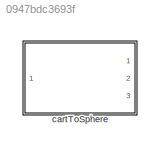
MODEL slx_0947bdc3693f
KIND library
CONFIG AbsTol = auto
CONFIG EnableMultiTasking = off
CONFIG FixedStep = auto
CONFIG MaxStep = auto
CONFIG MinStep = auto
CONFIG RelTol = 1e-3
CONFIG SampleTimeConstraint = Unconstrained
CONFIG SolverName = VariableStepAuto
CONFIG StartTime = 0.0
CONFIG StopTime = 10.0
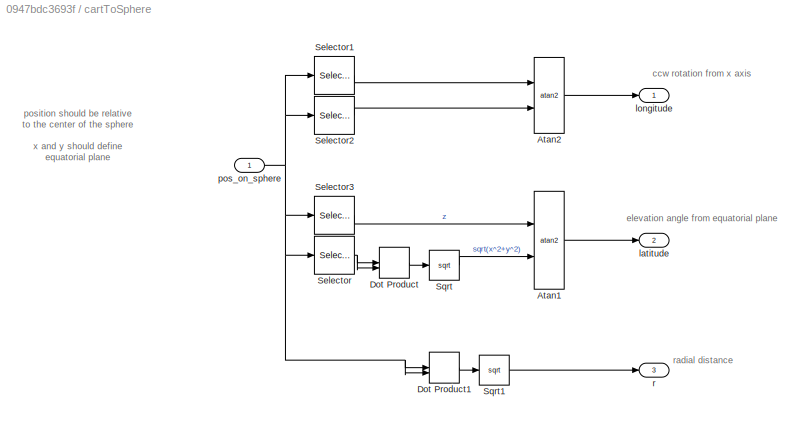
BLOCK [SubSystem] cartToSphere
  Ports = [1, 3]
  RequestExecContextInheritance = off
BLOCK [Trigonometry] cartToSphere/Atan1
  Operator = atan2
  Ports = [2, 1]
BLOCK [Trigonometry] cartToSphere/Atan2
  Operator = atan2
  Ports = [2, 1]
BLOCK [DotProduct] cartToSphere/Dot Product
  OutDataTypeStr = Inherit: Inherit via internal rule
BLOCK [DotProduct] cartToSphere/Dot Product1
  OutDataTypeStr = Inherit: Inherit via internal rule
BLOCK [Selector] cartToSphere/Selector
  IndexOptions = Index vector (dialog)
  Indices = [1 2]
  InputPortWidth = 3
  OutputSizes = 1
  Ports = [1, 1]
BLOCK [Selector] cartToSphere/Selector1
  IndexOptions = Index vector (dialog)
  Indices = 2
  InputPortWidth = 3
  OutputSizes = 1
  Ports = [1, 1]
BLOCK [Selector] cartToSphere/Selector2
  IndexOptions = Index vector (dialog)
  Indices = 1
  InputPortWidth = 3
  OutputSizes = 1
  Ports = [1, 1]
BLOCK [Selector] cartToSphere/Selector3
  IndexOptions = Index vector (dialog)
  Indices = 3
  InputPortWidth = 3
  OutputSizes = 1
  Ports = [1, 1]
BLOCK [Sqrt] cartToSphere/Sqrt
BLOCK [Sqrt] cartToSphere/Sqrt1
BLOCK [Outport] cartToSphere/latitude
  Port = 2
  VectorParamsAs1DForOutWhenUnconnected = off
BLOCK [Outport] cartToSphere/longitude
  VectorParamsAs1DForOutWhenUnconnected = off
BLOCK [Inport] cartToSphere/pos_on_sphere
BLOCK [Outport] cartToSphere/r
  Port = 3
  VectorParamsAs1DForOutWhenUnconnected = off
ANNOTATION cartToSphere: ccw rotation from x axis
ANNOTATION cartToSphere: elevation angle from equatorial plane
ANNOTATION cartToSphere: position should be relative to the center of the sphere x and y should define equatorial plane phi will be positive in positive z direction
ANNOTATION cartToSphere: radial distance
LINE cartToSphere/Atan1:1 -> cartToSphere/latitude:1
LINE cartToSphere/Atan2:1 -> cartToSphere/longitude:1
LINE cartToSphere/Dot Product1:1 -> cartToSphere/Sqrt1:1
LINE cartToSphere/Dot Product:1 -> cartToSphere/Sqrt:1
LINE cartToSphere/Selector1:1 -> cartToSphere/Atan2:1
LINE cartToSphere/Selector2:1 -> cartToSphere/Atan2:2
LINE cartToSphere/Selector3:1 -> cartToSphere/Atan1:1
NET cartToSphere/Selector:1 -> cartToSphere/Dot Product:1, cartToSphere/Dot Product:2
LINE cartToSphere/Sqrt1:1 -> cartToSphere/r:1
LINE cartToSphere/Sqrt:1 -> cartToSphere/Atan1:2
NET cartToSphere/pos_on_sphere:1 -> cartToSphere/Dot Product1:1, cartToSphere/Dot Product1:2, cartToSphere/Selector1:1, cartToSphere/Selector2:1, cartToSphere/Selector3:1, cartToSphere/Selector:1
note: NET lines group one-source signal fan-out (src -> all destinations, sorted); 1:1 wires keep LINE
